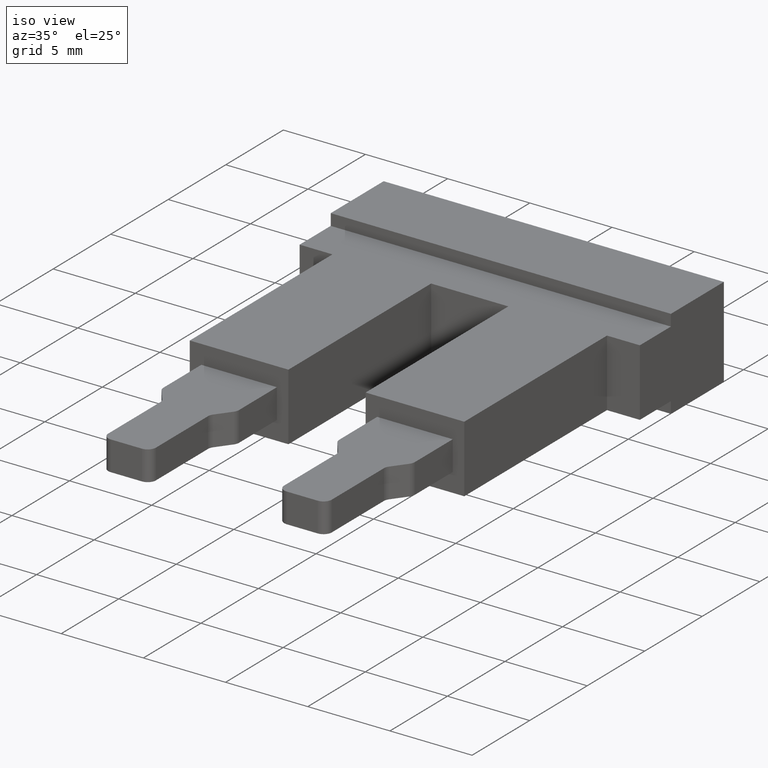
[diagram: clean part render]
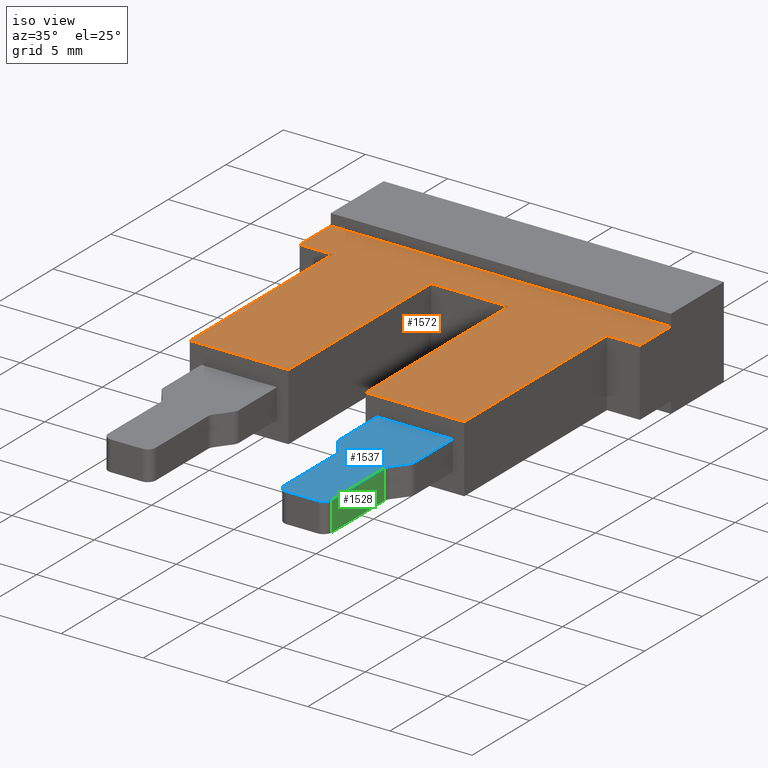
[diagram: same view with three faces highlighted in distinct colors, each labeled with its STEP entity id]
A machine part, iso view with three faces highlighted in distinct colors.
Their STEP definitions:

[orange] entity #1572 — the highlighted planar face has unit normal (0, 0, 1).
#116 = LINE ( 'NONE', #143, #1286 ) ;
#124 = LINE ( 'NONE', #132, #1259 ) ;
#125 = CARTESIAN_POINT ( 'NONE',  ( -1.329309590057500000, -12.40000000000000200, 4.100000000000000500 ) ) ;
#128 = LINE ( 'NONE', #125, #1263 ) ;
#130 = DIRECTION ( 'NONE',  ( -1.000000000000000000, 0.0000000000000000000, 0.0000000000000000000 ) ) ;
#132 = CARTESIAN_POINT ( 'NONE',  ( 20.69999999999999200, 7.300000000000002500, 4.100000000000000500 ) ) ;
#143 = CARTESIAN_POINT ( 'NONE',  ( 0.0000000000000000000, 7.299999999999999800, 4.100000000000000500 ) ) ;
#153 = DIRECTION ( 'NONE',  ( -2.409338161078894500E-017, -1.000000000000000000, -0.0000000000000000000 ) ) ;
#169 = DIRECTION ( 'NONE',  ( -3.016491377670779700E-016, 1.000000000000000000, -0.0000000000000000000 ) ) ;
#174 = LINE ( 'NONE', #232, #1341 ) ;
#175 = CARTESIAN_POINT ( 'NONE',  ( 18.70000000000000600, -3.735172737399429900E-015, 4.100000000000000500 ) ) ;
#176 = CARTESIAN_POINT ( 'NONE',  ( 0.0000000000000000000, 0.0000000000000000000, 4.100000000000000500 ) ) ;
#181 = LINE ( 'NONE', #176, #1285 ) ;
#200 = LINE ( 'NONE', #210, #1279 ) ;
#201 = DIRECTION ( 'NONE',  ( -2.775557561562890400E-016, 1.000000000000000000, -0.0000000000000000000 ) ) ;
#202 = DIRECTION ( 'NONE',  ( -0.0000000000000000000, -1.000000000000000000, -0.0000000000000000000 ) ) ;
#207 = DIRECTION ( 'NONE',  ( 1.000000000000000000, 0.0000000000000000000, -0.0000000000000000000 ) ) ;
#210 = CARTESIAN_POINT ( 'NONE',  ( 12.69999999999999900, -12.50000000000000000, 4.100000000000000500 ) ) ;
#216 = LINE ( 'NONE', #175, #1269 ) ;
#217 = LINE ( 'NONE', #222, #1339 ) ;
#222 = CARTESIAN_POINT ( 'NONE',  ( 20.69999999999999600, 2.872702076217591000E-015, 4.100000000000000500 ) ) ;
#226 = DIRECTION ( 'NONE',  ( -1.387778780781445900E-016, 1.000000000000000000, -0.0000000000000000000 ) ) ;
#231 = LINE ( 'NONE', #247, #1282 ) ;
#232 = CARTESIAN_POINT ( 'NONE',  ( 0.0000000000000000000, -12.40000000000000200, 4.099999999999999600 ) ) ;
#236 = DIRECTION ( 'NONE',  ( 1.000000000000000000, 2.775557561562890400E-016, -0.0000000000000000000 ) ) ;
#247 = CARTESIAN_POINT ( 'NONE',  ( 8.000000000000000000, -3.735172737399429900E-015, 4.100000000000000500 ) ) ;
#248 = DIRECTION ( 'NONE',  ( -1.000000000000000000, 0.0000000000000000000, 0.0000000000000000000 ) ) ;
#300 = LINE ( 'NONE', #302, #1325 ) ;
#302 = CARTESIAN_POINT ( 'NONE',  ( 18.69999999999999600, 2.700000000000002800, 4.100000000000000500 ) ) ;
#305 = DIRECTION ( 'NONE',  ( -1.000000000000000000, -2.775557561562890400E-016, 0.0000000000000000000 ) ) ;
#433 = VERTEX_POINT ( 'NONE', #569 ) ;
#434 = VERTEX_POINT ( 'NONE', #868 ) ;
#440 = VERTEX_POINT ( 'NONE', #836 ) ;
#446 = VERTEX_POINT ( 'NONE', #822 ) ;
#451 = VERTEX_POINT ( 'NONE', #854 ) ;
#472 = VERTEX_POINT ( 'NONE', #912 ) ;
#479 = VERTEX_POINT ( 'NONE', #914 ) ;
#493 = VERTEX_POINT ( 'NONE', #875 ) ;
#496 = VERTEX_POINT ( 'NONE', #877 ) ;
#497 = VERTEX_POINT ( 'NONE', #911 ) ;
#512 = VERTEX_POINT ( 'NONE', #918 ) ;
#514 = EDGE_LOOP ( 'NONE', ( #778, #755, #799, #789, #783, #679, #788, #771, #794, #774, #787, #748 ) ) ;
#546 = VERTEX_POINT ( 'NONE', #925 ) ;
#569 = CARTESIAN_POINT ( 'NONE',  ( -1.108295554096292100E-016, 2.699999999999997500, 4.100000000000000500 ) ) ;
#679 = ORIENTED_EDGE ( 'NONE', *, *, #1469, .T. ) ;
#748 = ORIENTED_EDGE ( 'NONE', *, *, #1493, .T. ) ;
#755 = ORIENTED_EDGE ( 'NONE', *, *, #1497, .T. ) ;
#771 = ORIENTED_EDGE ( 'NONE', *, *, #1564, .T. ) ;
#774 = ORIENTED_EDGE ( 'NONE', *, *, #1504, .T. ) ;
#778 = ORIENTED_EDGE ( 'NONE', *, *, #1472, .F. ) ;
#783 = ORIENTED_EDGE ( 'NONE', *, *, #1521, .T. ) ;
#787 = ORIENTED_EDGE ( 'NONE', *, *, #1577, .T. ) ;
#788 = ORIENTED_EDGE ( 'NONE', *, *, #1491, .T. ) ;
#789 = ORIENTED_EDGE ( 'NONE', *, *, #1474, .T. ) ;
#794 = ORIENTED_EDGE ( 'NONE', *, *, #1506, .F. ) ;
#799 = ORIENTED_EDGE ( 'NONE', *, *, #1513, .T. ) ;
#822 = CARTESIAN_POINT ( 'NONE',  ( 18.70000000000000300, 2.317590563905013500E-015, 4.100000000000000500 ) ) ;
#836 = CARTESIAN_POINT ( 'NONE',  ( 12.69999999999999900, -12.40000000000000200, 4.100000000000000500 ) ) ;
#854 = CARTESIAN_POINT ( 'NONE',  ( 18.70000000000001000, -12.40000000000000200, 4.100000000000000500 ) ) ;
#868 = CARTESIAN_POINT ( 'NONE',  ( -8.794084287937965300E-017, 0.0000000000000000000, 4.100000000000000500 ) ) ;
#875 = CARTESIAN_POINT ( 'NONE',  ( 12.69999999999999900, -9.337931843498582700E-016, 4.100000000000000500 ) ) ;
#877 = CARTESIAN_POINT ( 'NONE',  ( 2.000000000000000400, 0.0000000000000000000, 4.100000000000000500 ) ) ;
#911 = CARTESIAN_POINT ( 'NONE',  ( 20.69999999999999600, 2.527492104498207100E-015, 4.100000000000000500 ) ) ;
#912 = CARTESIAN_POINT ( 'NONE',  ( 8.000000000000001800, -12.40000000000000200, 4.100000000000000500 ) ) ;
#914 = CARTESIAN_POINT ( 'NONE',  ( 20.69999999999999200, 2.700000000000002800, 4.100000000000000500 ) ) ;
#918 = CARTESIAN_POINT ( 'NONE',  ( 8.000000000000000000, -3.735172737399429900E-015, 4.100000000000000500 ) ) ;
#925 = CARTESIAN_POINT ( 'NONE',  ( 2.000000000000000000, -12.40000000000000200, 4.100000000000000500 ) ) ;
#1050 = FACE_OUTER_BOUND ( 'NONE', #514, .T. ) ;
#1052 = CARTESIAN_POINT ( 'NONE',  ( 18.69999999999999600, 2.317590563905012700E-015, 4.100000000000000500 ) ) ;
#1057 = PLANE ( 'NONE',  #1376 ) ;
#1060 = DIRECTION ( 'NONE',  ( 0.0000000000000000000, 0.0000000000000000000, 1.000000000000000000 ) ) ;
#1072 = CARTESIAN_POINT ( 'NONE',  ( 2.000000000000000000, -12.50000000000000000, 4.100000000000000500 ) ) ;
#1073 = DIRECTION ( 'NONE',  ( -0.0000000000000000000, -1.000000000000000000, -0.0000000000000000000 ) ) ;
#1077 = LINE ( 'NONE', #1072, #1360 ) ;
#1087 = DIRECTION ( 'NONE',  ( 1.000000000000000000, 0.0000000000000000000, -0.0000000000000000000 ) ) ;
#1106 = DIRECTION ( 'NONE',  ( 1.000000000000000000, 7.947176037020060600E-016, -0.0000000000000000000 ) ) ;
#1114 = LINE ( 'NONE', #1137, #1397 ) ;
#1137 = CARTESIAN_POINT ( 'NONE',  ( 8.000000000000000000, -3.735172737399429900E-015, 4.100000000000000500 ) ) ;
#1259 = VECTOR ( 'NONE', #169, 1000.000000000000000 ) ;
#1263 = VECTOR ( 'NONE', #130, 1000.000000000000000 ) ;
#1269 = VECTOR ( 'NONE', #201, 1000.000000000000000 ) ;
#1279 = VECTOR ( 'NONE', #202, 1000.000000000000000 ) ;
#1282 = VECTOR ( 'NONE', #226, 1000.000000000000000 ) ;
#1285 = VECTOR ( 'NONE', #207, 1000.000000000000000 ) ;
#1286 = VECTOR ( 'NONE', #153, 1000.000000000000000 ) ;
#1325 = VECTOR ( 'NONE', #305, 1000.000000000000000 ) ;
#1339 = VECTOR ( 'NONE', #236, 1000.000000000000000 ) ;
#1341 = VECTOR ( 'NONE', #248, 1000.000000000000000 ) ;
#1360 = VECTOR ( 'NONE', #1073, 1000.000000000000000 ) ;
#1376 = AXIS2_PLACEMENT_3D ( 'NONE', #1052, #1060, #1087 ) ;
#1397 = VECTOR ( 'NONE', #1106, 1000.000000000000000 ) ;
#1469 = EDGE_CURVE ( 'NONE', #433, #434, #116, .T. ) ;
#1472 = EDGE_CURVE ( 'NONE', #451, #440, #128, .T. ) ;
#1474 = EDGE_CURVE ( 'NONE', #497, #479, #124, .T. ) ;
#1491 = EDGE_CURVE ( 'NONE', #434, #496, #181, .T. ) ;
#1493 = EDGE_CURVE ( 'NONE', #493, #440, #200, .T. ) ;
#1497 = EDGE_CURVE ( 'NONE', #451, #446, #216, .T. ) ;
#1504 = EDGE_CURVE ( 'NONE', #472, #512, #231, .T. ) ;
#1506 = EDGE_CURVE ( 'NONE', #472, #546, #174, .T. ) ;
#1513 = EDGE_CURVE ( 'NONE', #446, #497, #217, .T. ) ;
#1521 = EDGE_CURVE ( 'NONE', #479, #433, #300, .T. ) ;
#1564 = EDGE_CURVE ( 'NONE', #496, #546, #1077, .T. ) ;
#1572 = ADVANCED_FACE ( 'NONE', ( #1050 ), #1057, .T. ) ;
#1577 = EDGE_CURVE ( 'NONE', #512, #493, #1114, .T. ) ;

[blue] entity #1537 — the highlighted planar face has unit normal (-0, 0, -1).
#21 = CARTESIAN_POINT ( 'NONE',  ( 16.64999999999999900, -21.69999999999998900, 2.949999999999999300 ) ) ;
#30 = DIRECTION ( 'NONE',  ( -0.0000000000000000000, 1.665334536937734800E-016, -1.000000000000000000 ) ) ;
#35 = DIRECTION ( 'NONE',  ( 0.0000000000000000000, -1.000000000000000000, 0.0000000000000000000 ) ) ;
#38 = CARTESIAN_POINT ( 'NONE',  ( 17.89999999999999900, -16.00000000000024200, 2.949999999999999700 ) ) ;
#40 = DIRECTION ( 'NONE',  ( 0.6000000000001560800, 0.7999999999998829200, -0.0000000000000000000 ) ) ;
#45 = LINE ( 'NONE', #38, #1212 ) ;
#52 = DIRECTION ( 'NONE',  ( -1.000000000000000000, 0.0000000000000000000, 0.0000000000000000000 ) ) ;
#65 = DIRECTION ( 'NONE',  ( 0.0000000000000000000, 0.0000000000000000000, -1.000000000000000000 ) ) ;
#66 = CARTESIAN_POINT ( 'NONE',  ( 13.89999999999999900, -15.70000000000010900, 2.949999999999999700 ) ) ;
#129 = DIRECTION ( 'NONE',  ( 0.0000000000000000000, 1.000000000000000000, 0.0000000000000000000 ) ) ;
#142 = CARTESIAN_POINT ( 'NONE',  ( 14.24999999999999800, -2.699999999999992200, 2.949999999999999700 ) ) ;
#151 = DIRECTION ( 'NONE',  ( 1.000000000000000000, 0.0000000000000000000, 0.0000000000000000000 ) ) ;
#154 = CARTESIAN_POINT ( 'NONE',  ( 13.75000000000022000, -17.16666666666671800, 2.949999999999999700 ) ) ;
#161 = DIRECTION ( 'NONE',  ( -0.0000000000000000000, -0.0000000000000000000, -1.000000000000000000 ) ) ;
#168 = LINE ( 'NONE', #142, #1295 ) ;
#171 = LINE ( 'NONE', #221, #1272 ) ;
#189 = LINE ( 'NONE', #203, #1258 ) ;
#195 = DIRECTION ( 'NONE',  ( 1.000000000000000000, 0.0000000000000000000, -9.427844978134822700E-017 ) ) ;
#203 = CARTESIAN_POINT ( 'NONE',  ( -1.329309590057499600, -12.40000000000000200, 2.950000000000001100 ) ) ;
#218 = LINE ( 'NONE', #223, #1352 ) ;
#221 = CARTESIAN_POINT ( 'NONE',  ( 17.14999999999966500, -2.699999999999992200, 2.949999999999999300 ) ) ;
#223 = CARTESIAN_POINT ( 'NONE',  ( 18.00000000000000400, -2.699999999999992200, 2.949999999999999300 ) ) ;
#233 = DIRECTION ( 'NONE',  ( -0.0000000000000000000, -1.000000000000000000, -0.0000000000000000000 ) ) ;
#234 = LINE ( 'NONE', #263, #1334 ) ;
#244 = DIRECTION ( 'NONE',  ( 0.6000000000001560800, -0.7999999999998829200, -0.0000000000000000000 ) ) ;
#263 = CARTESIAN_POINT ( 'NONE',  ( 13.50000000000010100, -16.00000000000024200, 2.949999999999999700 ) ) ;
#268 = LINE ( 'NONE', #273, #1321 ) ;
#269 = DIRECTION ( 'NONE',  ( -1.000000000000000000, 0.0000000000000000000, 9.427844978134822700E-017 ) ) ;
#272 = DIRECTION ( 'NONE',  ( -0.0000000000000000000, -1.000000000000000000, -0.0000000000000000000 ) ) ;
#273 = CARTESIAN_POINT ( 'NONE',  ( 13.39999999999999900, -22.19999999999999600, 2.949999999999999700 ) ) ;
#288 = DIRECTION ( 'NONE',  ( -0.0000000000000000000, -0.0000000000000000000, -1.000000000000000000 ) ) ;
#299 = CARTESIAN_POINT ( 'NONE',  ( 17.49999999999999600, -15.70000000000024400, 2.949999999999999300 ) ) ;
#304 = DIRECTION ( 'NONE',  ( 1.000000000000000000, 0.0000000000000000000, 0.0000000000000000000 ) ) ;
#322 = FACE_OUTER_BOUND ( 'NONE', #507, .T. ) ;
#327 = DIRECTION ( 'NONE',  ( -9.427844978134822700E-017, 0.0000000000000000000, -1.000000000000000000 ) ) ;
#343 = PLANE ( 'NONE',  #1324 ) ;
#345 = CARTESIAN_POINT ( 'NONE',  ( 13.39999999999999900, -2.699999999999992200, 2.949999999999999700 ) ) ;
#347 = DIRECTION ( 'NONE',  ( -1.000000000000000000, 0.0000000000000000000, 9.427844978134822700E-017 ) ) ;
#429 = VERTEX_POINT ( 'NONE', #820 ) ;
#438 = VERTEX_POINT ( 'NONE', #806 ) ;
#439 = VERTEX_POINT ( 'NONE', #858 ) ;
#444 = VERTEX_POINT ( 'NONE', #817 ) ;
#450 = VERTEX_POINT ( 'NONE', #844 ) ;
#452 = VERTEX_POINT ( 'NONE', #841 ) ;
#465 = VERTEX_POINT ( 'NONE', #810 ) ;
#468 = VERTEX_POINT ( 'NONE', #813 ) ;
#471 = VERTEX_POINT ( 'NONE', #886 ) ;
#474 = VERTEX_POINT ( 'NONE', #882 ) ;
#477 = VERTEX_POINT ( 'NONE', #907 ) ;
#483 = VERTEX_POINT ( 'NONE', #916 ) ;
#484 = VERTEX_POINT ( 'NONE', #889 ) ;
#487 = VERTEX_POINT ( 'NONE', #917 ) ;
#507 = EDGE_LOOP ( 'NONE', ( #802, #781, #793, #777, #805, #690, #754, #761, #717, #782, #703, #742, #681, #776 ) ) ;
#681 = ORIENTED_EDGE ( 'NONE', *, *, #1519, .F. ) ;
#690 = ORIENTED_EDGE ( 'NONE', *, *, #1425, .F. ) ;
#703 = ORIENTED_EDGE ( 'NONE', *, *, #1437, .T. ) ;
#717 = ORIENTED_EDGE ( 'NONE', *, *, #1500, .F. ) ;
#742 = ORIENTED_EDGE ( 'NONE', *, *, #1518, .F. ) ;
#754 = ORIENTED_EDGE ( 'NONE', *, *, #1520, .F. ) ;
#761 = ORIENTED_EDGE ( 'NONE', *, *, #1428, .F. ) ;
#776 = ORIENTED_EDGE ( 'NONE', *, *, #1487, .F. ) ;
#777 = ORIENTED_EDGE ( 'NONE', *, *, #1475, .T. ) ;
#781 = ORIENTED_EDGE ( 'NONE', *, *, #1445, .F. ) ;
#782 = ORIENTED_EDGE ( 'NONE', *, *, #1416, .T. ) ;
#793 = ORIENTED_EDGE ( 'NONE', *, *, #1510, .T. ) ;
#802 = ORIENTED_EDGE ( 'NONE', *, *, #1576, .F. ) ;
#805 = ORIENTED_EDGE ( 'NONE', *, *, #1481, .F. ) ;
#806 = CARTESIAN_POINT ( 'NONE',  ( 14.25000000000011000, -17.16666666666673200, 2.949999999999999700 ) ) ;
#810 = CARTESIAN_POINT ( 'NONE',  ( 14.75000000000007800, -22.19999999999999600, 2.949999999999999700 ) ) ;
#813 = CARTESIAN_POINT ( 'NONE',  ( 17.24999999999972300, -16.86666666666692300, 2.949999999999999300 ) ) ;
#817 = CARTESIAN_POINT ( 'NONE',  ( 18.00000000000000400, -12.40000000000000200, 2.949999999999999300 ) ) ;
#820 = CARTESIAN_POINT ( 'NONE',  ( 13.39999999999999900, -15.70000000000010900, 2.949999999999999700 ) ) ;
#841 = CARTESIAN_POINT ( 'NONE',  ( 13.50000000000005700, -16.00000000000018800, 2.949999999999999700 ) ) ;
#844 = CARTESIAN_POINT ( 'NONE',  ( 17.14999999999966500, -17.16666666666701600, 2.949999999999999300 ) ) ;
#858 = CARTESIAN_POINT ( 'NONE',  ( 14.24999999999999800, -21.69999999999998900, 2.949999999999999700 ) ) ;
#882 = CARTESIAN_POINT ( 'NONE',  ( 17.14999999999983200, -21.69999999999998900, 2.949999999999999300 ) ) ;
#886 = CARTESIAN_POINT ( 'NONE',  ( 17.89999999999994500, -16.00000000000032000, 2.949999999999999300 ) ) ;
#889 = CARTESIAN_POINT ( 'NONE',  ( 18.00000000000000400, -15.70000000000024400, 2.949999999999999300 ) ) ;
#907 = CARTESIAN_POINT ( 'NONE',  ( 16.64999999999999900, -22.19999999999999600, 2.949999999999999300 ) ) ;
#916 = CARTESIAN_POINT ( 'NONE',  ( 13.39999999999999900, -12.40000000000000200, 2.949999999999999700 ) ) ;
#917 = CARTESIAN_POINT ( 'NONE',  ( 14.15000000000016200, -16.86666666666664200, 2.949999999999999700 ) ) ;
#934 = DIRECTION ( 'NONE',  ( -1.000000000000000000, 0.0000000000000000000, 0.0000000000000000000 ) ) ;
#940 = DIRECTION ( 'NONE',  ( 0.0000000000000000000, 0.0000000000000000000, -1.000000000000000000 ) ) ;
#950 = DIRECTION ( 'NONE',  ( 0.0000000000000000000, 0.0000000000000000000, -1.000000000000000000 ) ) ;
#953 = CARTESIAN_POINT ( 'NONE',  ( 14.75000000000007800, -21.69999999999998900, 2.949999999999999700 ) ) ;
#964 = DIRECTION ( 'NONE',  ( -1.000000000000000000, 0.0000000000000000000, 0.0000000000000000000 ) ) ;
#965 = CARTESIAN_POINT ( 'NONE',  ( 17.64999999999966500, -17.16666666666699800, 2.949999999999999300 ) ) ;
#1123 = CARTESIAN_POINT ( 'NONE',  ( 13.39999999999999900, -2.699999999999992200, 2.949999999999999700 ) ) ;
#1126 = DIRECTION ( 'NONE',  ( 0.0000000000000000000, 1.000000000000000000, 0.0000000000000000000 ) ) ;
#1130 = LINE ( 'NONE', #1123, #1402 ) ;
#1196 = AXIS2_PLACEMENT_3D ( 'NONE', #965, #950, #964 ) ;
#1205 = AXIS2_PLACEMENT_3D ( 'NONE', #21, #30, #35 ) ;
#1207 = AXIS2_PLACEMENT_3D ( 'NONE', #66, #65, #52 ) ;
#1212 = VECTOR ( 'NONE', #40, 1000.000000000000100 ) ;
#1221 = AXIS2_PLACEMENT_3D ( 'NONE', #953, #940, #934 ) ;
#1223 = CIRCLE ( 'NONE', #1205, 0.5000000000000282000 ) ;
#1231 = CIRCLE ( 'NONE', #1196, 0.5000000000000004400 ) ;
#1237 = CIRCLE ( 'NONE', #1221, 0.5000000000000282000 ) ;
#1241 = CIRCLE ( 'NONE', #1207, 0.5000000000000004400 ) ;
#1247 = CIRCLE ( 'NONE', #1292, 0.5000000000000004400 ) ;
#1258 = VECTOR ( 'NONE', #195, 1000.000000000000000 ) ;
#1272 = VECTOR ( 'NONE', #233, 1000.000000000000000 ) ;
#1292 = AXIS2_PLACEMENT_3D ( 'NONE', #154, #161, #151 ) ;
#1295 = VECTOR ( 'NONE', #129, 1000.000000000000000 ) ;
#1317 = CIRCLE ( 'NONE', #1362, 0.5000000000000004400 ) ;
#1321 = VECTOR ( 'NONE', #269, 1000.000000000000000 ) ;
#1324 = AXIS2_PLACEMENT_3D ( 'NONE', #345, #327, #347 ) ;
#1334 = VECTOR ( 'NONE', #244, 1000.000000000000100 ) ;
#1352 = VECTOR ( 'NONE', #272, 1000.000000000000000 ) ;
#1362 = AXIS2_PLACEMENT_3D ( 'NONE', #299, #288, #304 ) ;
#1402 = VECTOR ( 'NONE', #1126, 1000.000000000000000 ) ;
#1416 = EDGE_CURVE ( 'NONE', #450, #468, #1231, .T. ) ;
#1425 = EDGE_CURVE ( 'NONE', #465, #439, #1237, .T. ) ;
#1428 = EDGE_CURVE ( 'NONE', #474, #477, #1223, .T. ) ;
#1437 = EDGE_CURVE ( 'NONE', #468, #471, #45, .T. ) ;
#1445 = EDGE_CURVE ( 'NONE', #452, #429, #1241, .T. ) ;
#1475 = EDGE_CURVE ( 'NONE', #487, #438, #1247, .T. ) ;
#1481 = EDGE_CURVE ( 'NONE', #439, #438, #168, .T. ) ;
#1487 = EDGE_CURVE ( 'NONE', #483, #444, #189, .T. ) ;
#1500 = EDGE_CURVE ( 'NONE', #450, #474, #171, .T. ) ;
#1510 = EDGE_CURVE ( 'NONE', #452, #487, #234, .T. ) ;
#1518 = EDGE_CURVE ( 'NONE', #484, #471, #1317, .T. ) ;
#1519 = EDGE_CURVE ( 'NONE', #444, #484, #218, .T. ) ;
#1520 = EDGE_CURVE ( 'NONE', #477, #465, #268, .T. ) ;
#1537 = ADVANCED_FACE ( 'NONE', ( #322 ), #343, .F. ) ;
#1576 = EDGE_CURVE ( 'NONE', #429, #483, #1130, .T. ) ;

[green] entity #1528 — the highlighted planar face has unit normal (-1, -0, 0).
#141 = CARTESIAN_POINT ( 'NONE',  ( 17.14999999999999900, -2.699999999999992200, 1.149999999999979700 ) ) ;
#157 = LINE ( 'NONE', #141, #1294 ) ;
#162 = DIRECTION ( 'NONE',  ( 0.0000000000000000000, 1.000000000000000000, -0.0000000000000000000 ) ) ;
#171 = LINE ( 'NONE', #221, #1272 ) ;
#221 = CARTESIAN_POINT ( 'NONE',  ( 17.14999999999966500, -2.699999999999992200, 2.949999999999999300 ) ) ;
#233 = DIRECTION ( 'NONE',  ( -0.0000000000000000000, -1.000000000000000000, -0.0000000000000000000 ) ) ;
#295 = PLANE ( 'NONE',  #1333 ) ;
#296 = DIRECTION ( 'NONE',  ( -1.000000000000000000, -7.347064133549189600E-014, 0.0000000000000000000 ) ) ;
#301 = DIRECTION ( 'NONE',  ( 7.347064133549189600E-014, -1.000000000000000000, 0.0000000000000000000 ) ) ;
#303 = CARTESIAN_POINT ( 'NONE',  ( 17.14999999999999900, -21.69999999999998900, 1.449999999999982000 ) ) ;
#308 = FACE_OUTER_BOUND ( 'NONE', #590, .T. ) ;
#450 = VERTEX_POINT ( 'NONE', #844 ) ;
#454 = VERTEX_POINT ( 'NONE', #816 ) ;
#474 = VERTEX_POINT ( 'NONE', #882 ) ;
#476 = VERTEX_POINT ( 'NONE', #924 ) ;
#590 = EDGE_LOOP ( 'NONE', ( #648, #667, #673, #646 ) ) ;
#646 = ORIENTED_EDGE ( 'NONE', *, *, #1479, .T. ) ;
#648 = ORIENTED_EDGE ( 'NONE', *, *, #1418, .F. ) ;
#667 = ORIENTED_EDGE ( 'NONE', *, *, #1500, .T. ) ;
#673 = ORIENTED_EDGE ( 'NONE', *, *, #1423, .F. ) ;
#816 = CARTESIAN_POINT ( 'NONE',  ( 17.14999999999999900, -21.69999999999998900, 1.149999999999979700 ) ) ;
#844 = CARTESIAN_POINT ( 'NONE',  ( 17.14999999999966500, -17.16666666666701600, 2.949999999999999300 ) ) ;
#882 = CARTESIAN_POINT ( 'NONE',  ( 17.14999999999983200, -21.69999999999998900, 2.949999999999999300 ) ) ;
#924 = CARTESIAN_POINT ( 'NONE',  ( 17.14999999999983200, -17.16666666666701600, 1.149999999999979700 ) ) ;
#932 = CARTESIAN_POINT ( 'NONE',  ( 17.14999999999999900, -21.69999999999998900, 1.449999999999982000 ) ) ;
#933 = DIRECTION ( 'NONE',  ( -0.0000000000000000000, 0.0000000000000000000, 1.000000000000000000 ) ) ;
#936 = LINE ( 'NONE', #937, #1222 ) ;
#937 = CARTESIAN_POINT ( 'NONE',  ( 17.14999999999966500, -17.16666666666703700, 1.449999999999982000 ) ) ;
#938 = DIRECTION ( 'NONE',  ( 0.0000000000000000000, -0.0000000000000000000, -1.000000000000000000 ) ) ;
#939 = LINE ( 'NONE', #932, #1213 ) ;
#1213 = VECTOR ( 'NONE', #933, 1000.000000000000000 ) ;
#1222 = VECTOR ( 'NONE', #938, 1000.000000000000000 ) ;
#1272 = VECTOR ( 'NONE', #233, 1000.000000000000000 ) ;
#1294 = VECTOR ( 'NONE', #162, 1000.000000000000000 ) ;
#1333 = AXIS2_PLACEMENT_3D ( 'NONE', #303, #296, #301 ) ;
#1418 = EDGE_CURVE ( 'NONE', #450, #476, #936, .T. ) ;
#1423 = EDGE_CURVE ( 'NONE', #454, #474, #939, .T. ) ;
#1479 = EDGE_CURVE ( 'NONE', #454, #476, #157, .T. ) ;
#1500 = EDGE_CURVE ( 'NONE', #450, #474, #171, .T. ) ;
#1528 = ADVANCED_FACE ( 'NONE', ( #308 ), #295, .F. ) ;